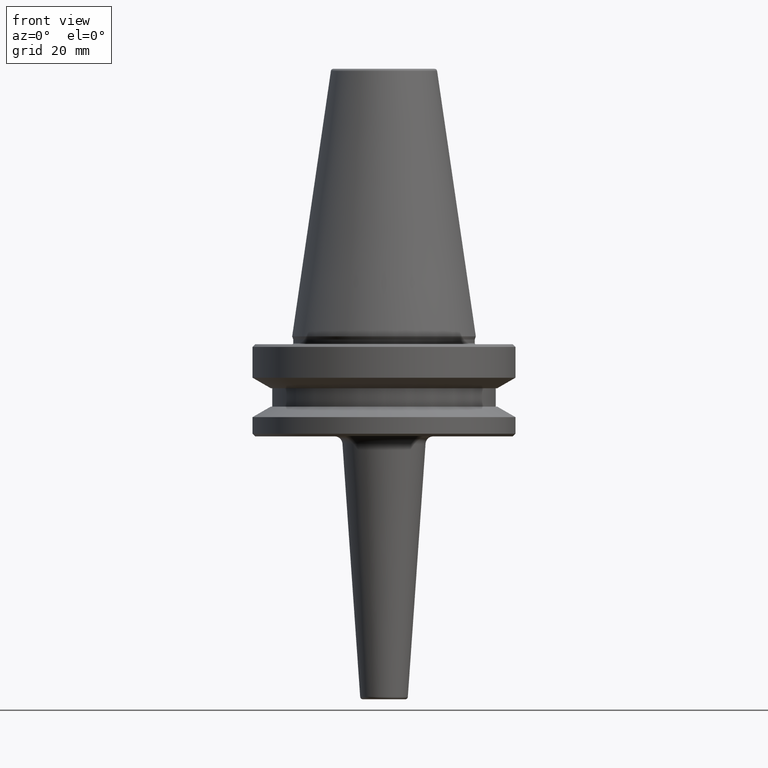
[diagram: clean part render]
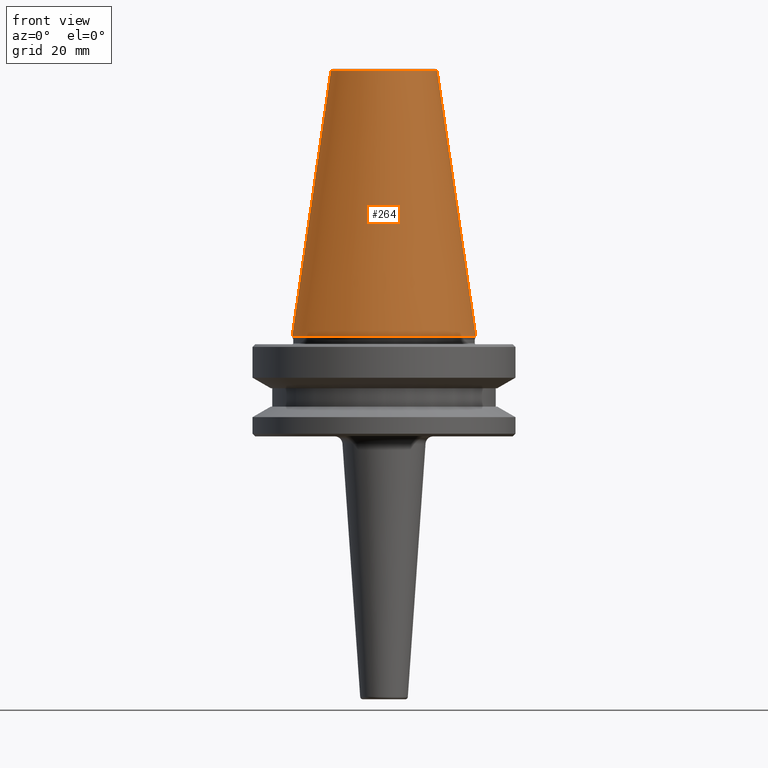
[diagram: same view with one face highlighted and labeled with its STEP entity id]
A machine part, front view. The second image highlights one B-rep face of the part: STEP entity #264.
In plain terms, the highlighted conical surface has half-angle 8.297 deg.
Its self-contained STEP definition (entity closure, byte-faithful):
#1 = CARTESIAN_POINT ( 'NONE',  ( 20.20381605152244500, 3.375666405914009100E-015, 100.9443082272672900 ) ) ;
#36 = CIRCLE ( 'NONE', #651, 20.20381605152244500 ) ;
#60 = DIRECTION ( 'NONE',  ( -0.1443082272673000800, 0.0000000000000000000, -0.9895327864921754600 ) ) ;
#67 = LINE ( 'NONE', #246, #659 ) ;
#79 = EDGE_CURVE ( 'NONE', #134, #808, #906, .T. ) ;
#133 = CARTESIAN_POINT ( 'NONE',  ( -20.20381605152244500, 0.0000000000000000000, 100.9443082272672900 ) ) ;
#134 = VERTEX_POINT ( 'NONE', #533 ) ;
#143 = FACE_OUTER_BOUND ( 'NONE', #271, .T. ) ;
#186 = DIRECTION ( 'NONE',  ( -0.0000000000000000000, -0.0000000000000000000, 1.000000000000000000 ) ) ;
#215 = CARTESIAN_POINT ( 'NONE',  ( -34.92499999999999700, 0.0000000000000000000, 0.0000000000000000000 ) ) ;
#246 = CARTESIAN_POINT ( 'NONE',  ( 34.92499999999999700, 4.277078946022130900E-015, 0.0000000000000000000 ) ) ;
#264 = ADVANCED_FACE ( 'NONE', ( #143 ), #789, .T. ) ;
#271 = EDGE_LOOP ( 'NONE', ( #534, #861, #917, #892 ) ) ;
#275 = AXIS2_PLACEMENT_3D ( 'NONE', #819, #996, #893 ) ;
#317 = EDGE_CURVE ( 'NONE', #725, #134, #345, .T. ) ;
#345 = LINE ( 'NONE', #215, #475 ) ;
#387 = EDGE_CURVE ( 'NONE', #725, #829, #36, .T. ) ;
#475 = VECTOR ( 'NONE', #60, 1000.000000000000000 ) ;
#489 = DIRECTION ( 'NONE',  ( -1.000000000000000000, 0.0000000000000000000, 0.0000000000000000000 ) ) ;
#490 = DIRECTION ( 'NONE',  ( 0.0000000000000000000, 0.0000000000000000000, -1.000000000000000000 ) ) ;
#493 = CARTESIAN_POINT ( 'NONE',  ( 0.0000000000000000000, 0.0000000000000000000, 0.0000000000000000000 ) ) ;
#533 = CARTESIAN_POINT ( 'NONE',  ( -34.92499999999999700, 4.277078946022131700E-015, 0.0000000000000000000 ) ) ;
#534 = ORIENTED_EDGE ( 'NONE', *, *, #1003, .F. ) ;
#572 = DIRECTION ( 'NONE',  ( 0.1443082272673000800, 1.767266086135278300E-017, -0.9895327864921754600 ) ) ;
#651 = AXIS2_PLACEMENT_3D ( 'NONE', #759, #186, #836 ) ;
#659 = VECTOR ( 'NONE', #572, 1000.000000000000000 ) ;
#704 = CARTESIAN_POINT ( 'NONE',  ( 34.92499999999999700, 0.0000000000000000000, 0.0000000000000000000 ) ) ;
#725 = VERTEX_POINT ( 'NONE', #133 ) ;
#759 = CARTESIAN_POINT ( 'NONE',  ( 0.0000000000000000000, 0.0000000000000000000, 100.9443082272672900 ) ) ;
#789 = CONICAL_SURFACE ( 'NONE', #962, 34.92499999999999700, 0.1448138465474120600 ) ;
#808 = VERTEX_POINT ( 'NONE', #704 ) ;
#819 = CARTESIAN_POINT ( 'NONE',  ( 0.0000000000000000000, 0.0000000000000000000, 0.0000000000000000000 ) ) ;
#829 = VERTEX_POINT ( 'NONE', #1 ) ;
#836 = DIRECTION ( 'NONE',  ( 1.000000000000000000, 0.0000000000000000000, 0.0000000000000000000 ) ) ;
#861 = ORIENTED_EDGE ( 'NONE', *, *, #387, .F. ) ;
#892 = ORIENTED_EDGE ( 'NONE', *, *, #79, .T. ) ;
#893 = DIRECTION ( 'NONE',  ( 1.000000000000000000, 0.0000000000000000000, 0.0000000000000000000 ) ) ;
#906 = CIRCLE ( 'NONE', #275, 34.92499999999999700 ) ;
#917 = ORIENTED_EDGE ( 'NONE', *, *, #317, .T. ) ;
#962 = AXIS2_PLACEMENT_3D ( 'NONE', #493, #490, #489 ) ;
#996 = DIRECTION ( 'NONE',  ( -0.0000000000000000000, -0.0000000000000000000, 1.000000000000000000 ) ) ;
#1003 = EDGE_CURVE ( 'NONE', #829, #808, #67, .T. ) ;